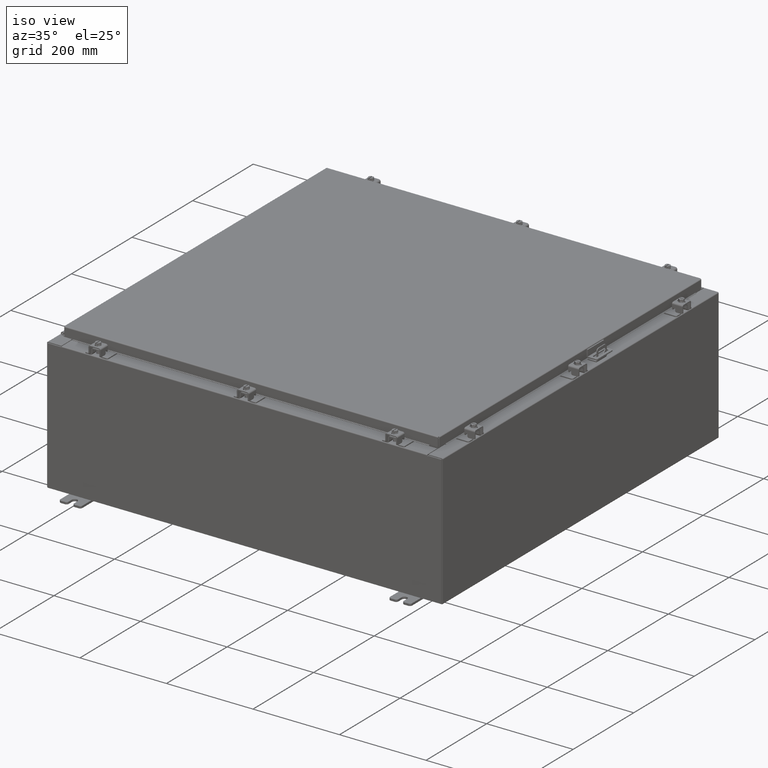
[diagram: clean part render]
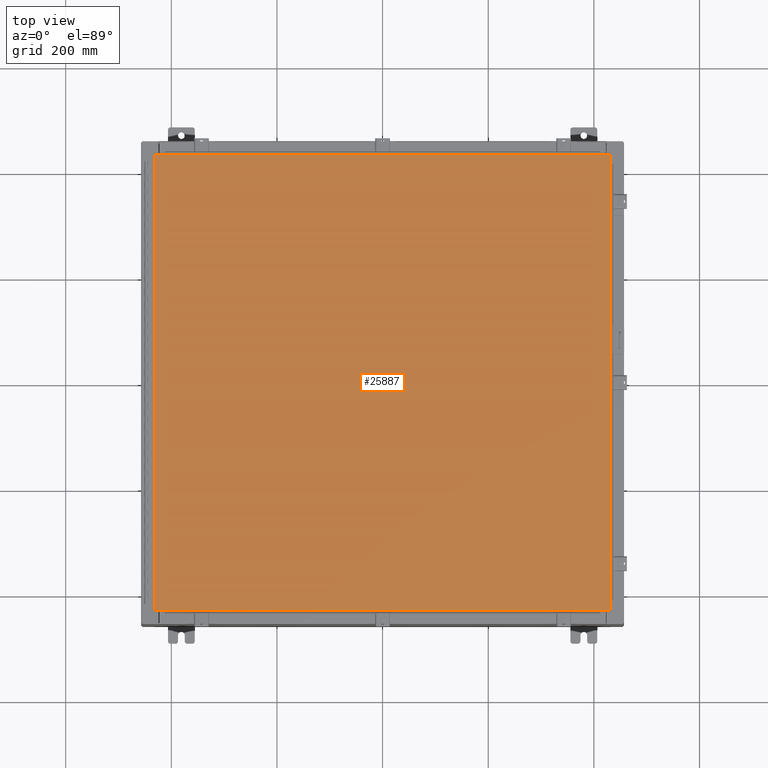
[diagram: tour spotlight — one face highlighted and labeled with its STEP entity id]
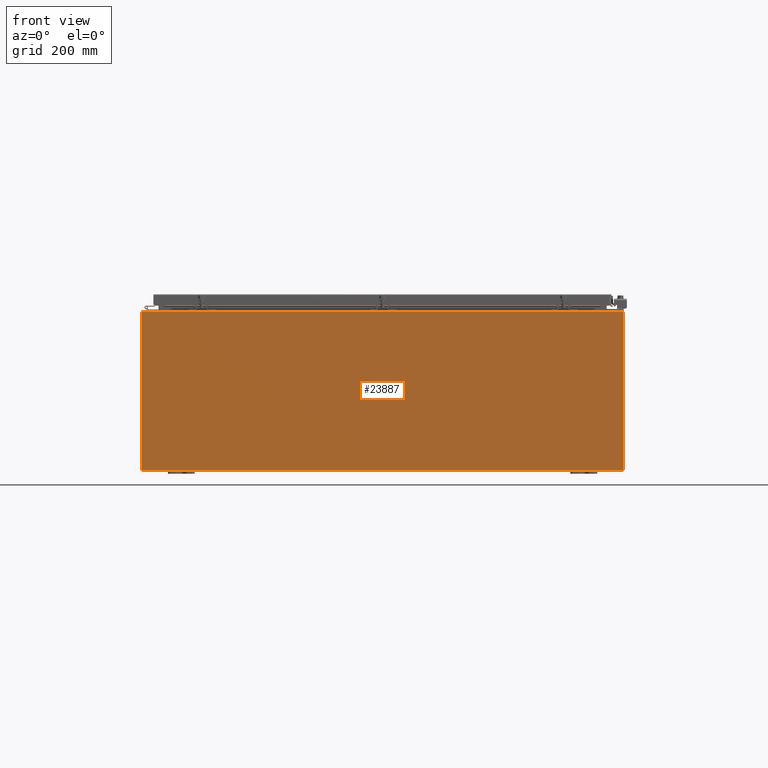
[diagram: tour spotlight — one face highlighted and labeled with its STEP entity id]
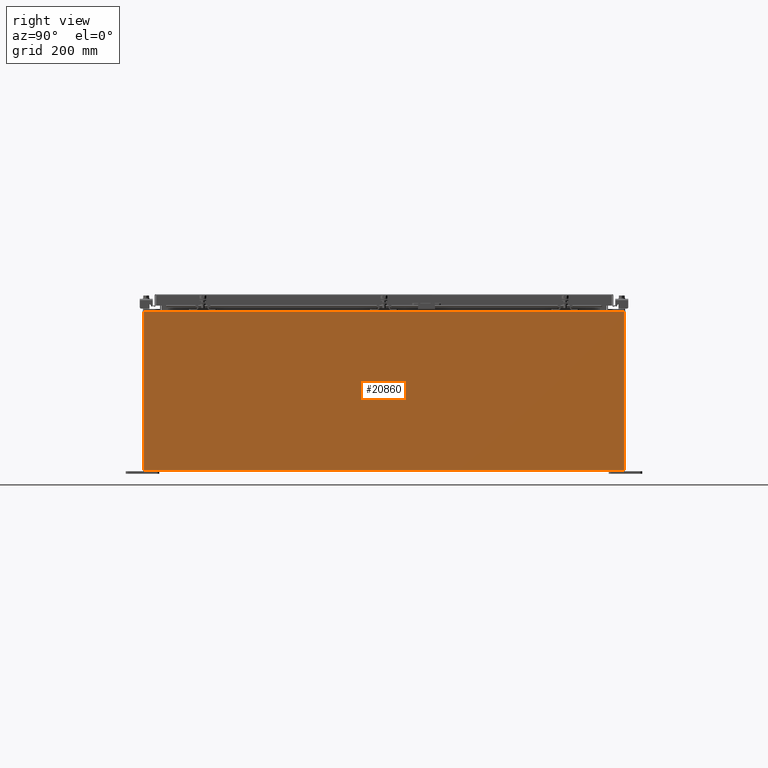
[diagram: tour spotlight — one face highlighted and labeled with its STEP entity id]
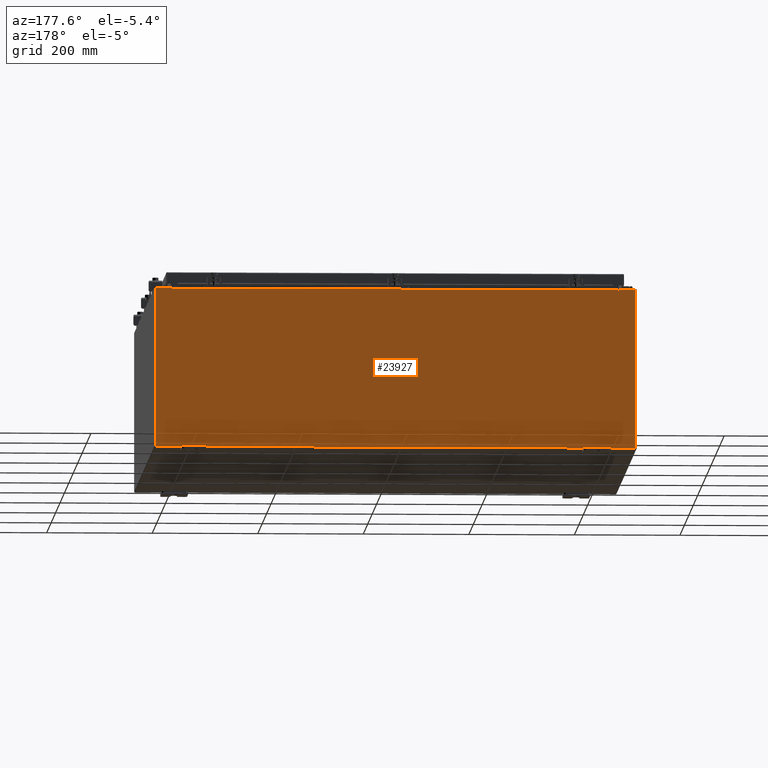
[diagram: tour spotlight — one face highlighted and labeled with its STEP entity id]
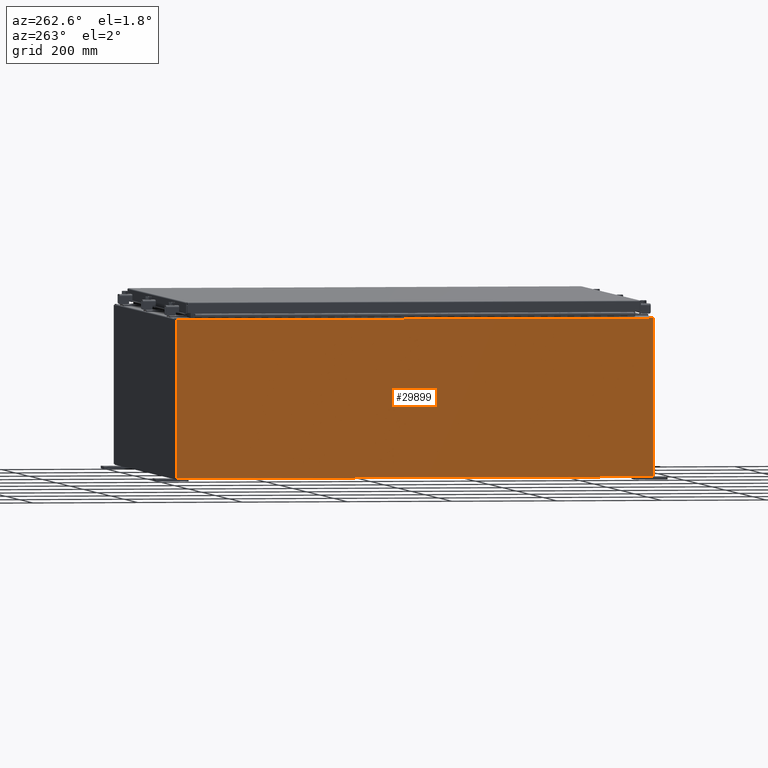
[diagram: tour spotlight — one face highlighted and labeled with its STEP entity id]
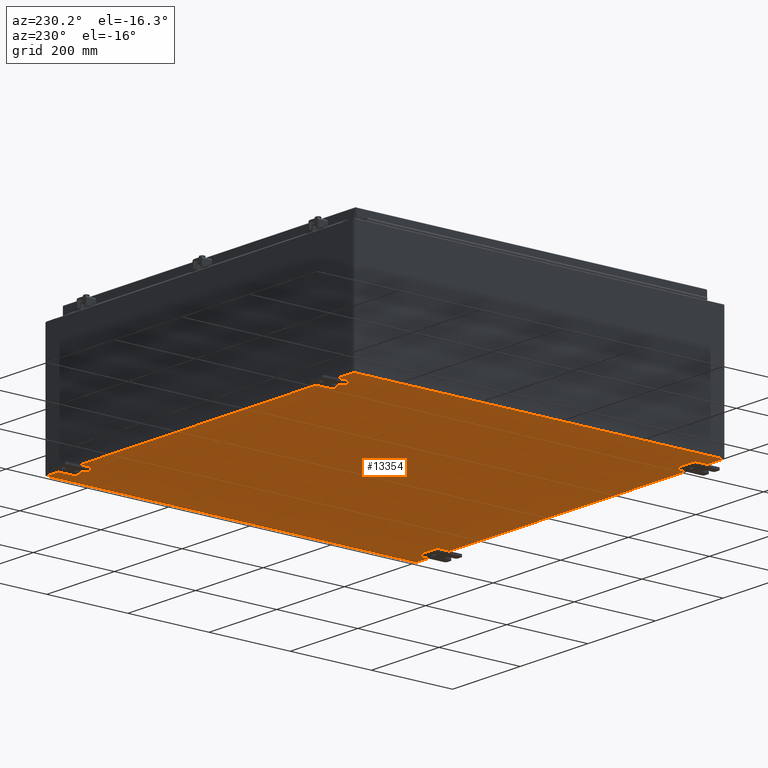
[diagram: tour spotlight — one face highlighted and labeled with its STEP entity id]
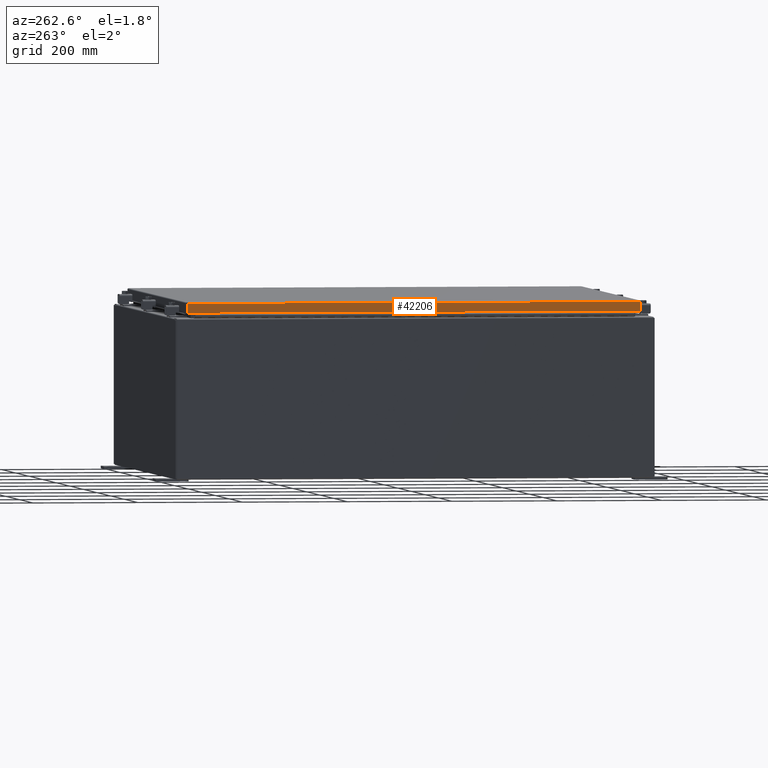
[diagram: tour spotlight — one face highlighted and labeled with its STEP entity id]
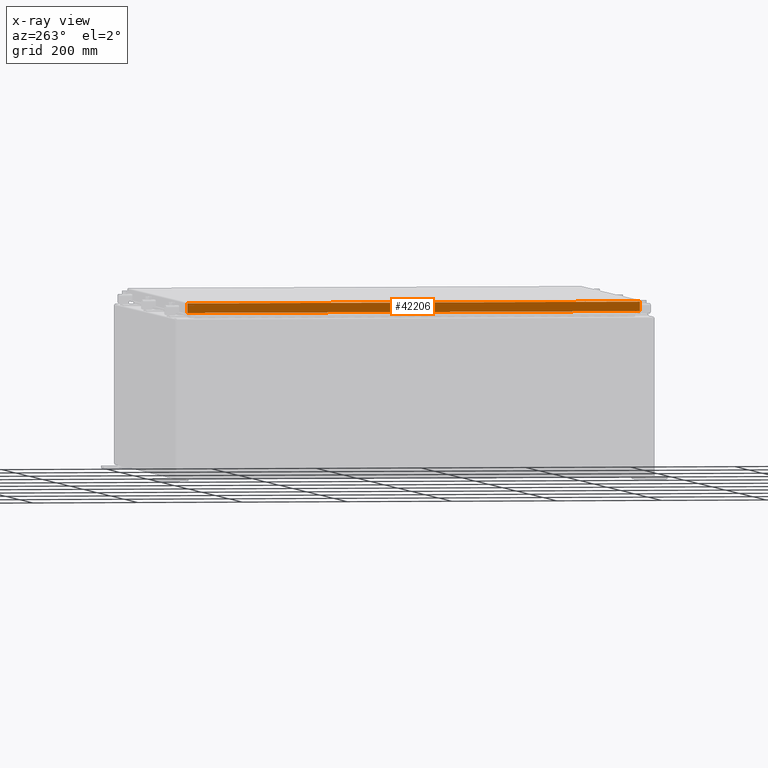
[diagram: x-ray of the same camera — body ghosted, this tour face saturated]
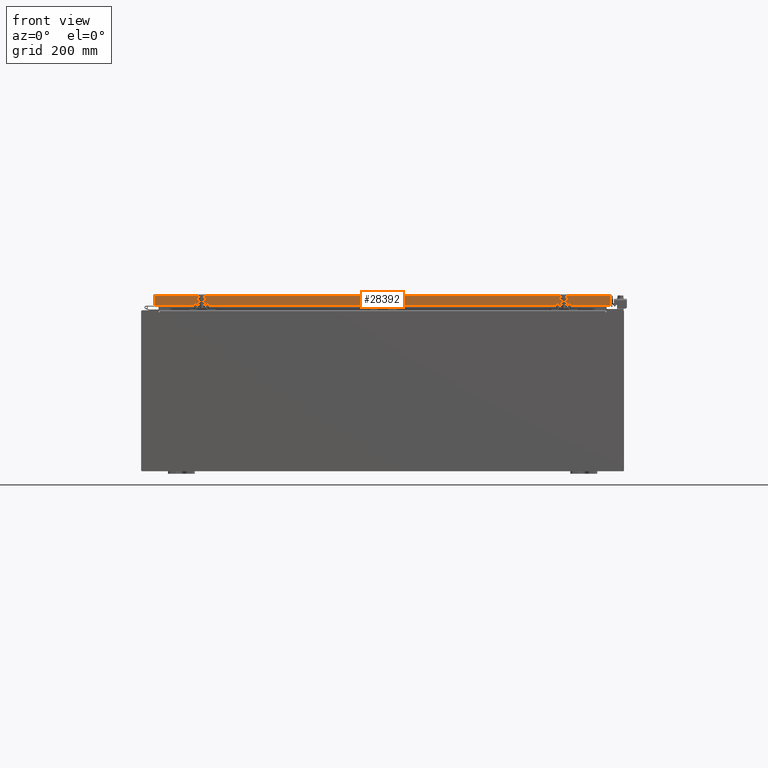
[diagram: tour spotlight — one face highlighted and labeled with its STEP entity id]
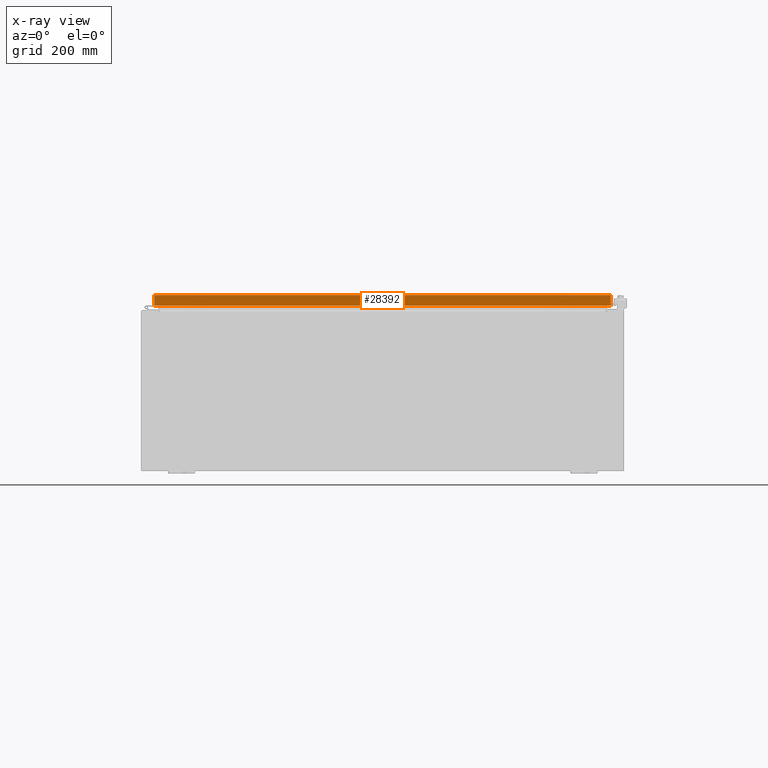
[diagram: x-ray of the same camera — body ghosted, this tour face saturated]
A machine part: a face-by-face anatomy tour. The part has 2594 B-rep faces; the first image is the clean iso view, then the 8 largest visible faces are spotlighted one at a time (largest first), each with its STEP entity span.

Face 1 — top view, entity #25887. In plain terms, the highlighted planar face has unit normal (0, 0, -1).
Definition (entity closure, byte-faithful):
#2145 = EDGE_CURVE ( 'NONE', #40204, #11570, #14631, .T. ) ;
#2444 = CARTESIAN_POINT ( 'NONE',  ( -16.99029999999999800, -17.00630000000000000, -2.048885995248197400E-016 ) ) ;
#3492 = VERTEX_POINT ( 'NONE', #18720 ) ;
#5374 = VECTOR ( 'NONE', #9893, 39.37007874015748100 ) ;
#6079 = PLANE ( 'NONE',  #12068 ) ;
#8097 = ORIENTED_EDGE ( 'NONE', *, *, #25274, .T. ) ;
#9584 = DIRECTION ( 'NONE',  ( 0.0000000000000000000, 0.0000000000000000000, -1.000000000000000000 ) ) ;
#9765 = FACE_OUTER_BOUND ( 'NONE', #30158, .T. ) ;
#9893 = DIRECTION ( 'NONE',  ( -1.000000000000000000, -0.0000000000000000000, -0.0000000000000000000 ) ) ;
#11570 = VERTEX_POINT ( 'NONE', #35130 ) ;
#12068 = AXIS2_PLACEMENT_3D ( 'NONE', #19921, #9584, #33869 ) ;
#14110 = LINE ( 'NONE', #33444, #16306 ) ;
#14631 = LINE ( 'NONE', #43346, #5374 ) ;
#15420 = LINE ( 'NONE', #26801, #32778 ) ;
#16306 = VECTOR ( 'NONE', #36635, 39.37007874015748100 ) ;
#18720 = CARTESIAN_POINT ( 'NONE',  ( 16.99029999999999800, -17.00629999999999600, -2.048885995248197400E-016 ) ) ;
#19921 = CARTESIAN_POINT ( 'NONE',  ( 0.0000000000000000000, 0.0000000000000000000, 0.0000000000000000000 ) ) ;
#24576 = VECTOR ( 'NONE', #30268, 39.37007874015748100 ) ;
#25274 = EDGE_CURVE ( 'NONE', #11570, #39502, #15420, .T. ) ;
#25887 = ADVANCED_FACE ( 'NONE', ( #9765 ), #6079, .F. ) ;
#26801 = CARTESIAN_POINT ( 'NONE',  ( -16.99029999999998400, 17.00630000000000300, -2.048885995248197400E-016 ) ) ;
#29606 = ORIENTED_EDGE ( 'NONE', *, *, #40821, .T. ) ;
#30158 = EDGE_LOOP ( 'NONE', ( #33754, #29606, #31762, #8097 ) ) ;
#30268 = DIRECTION ( 'NONE',  ( 1.000000000000000000, -0.0000000000000000000, -0.0000000000000000000 ) ) ;
#30290 = DIRECTION ( 'NONE',  ( 0.0000000000000000000, -1.000000000000000000, 0.0000000000000000000 ) ) ;
#31762 = ORIENTED_EDGE ( 'NONE', *, *, #2145, .T. ) ;
#32778 = VECTOR ( 'NONE', #30290, 39.37007874015748100 ) ;
#33444 = CARTESIAN_POINT ( 'NONE',  ( 16.99029999999999800, -17.00629999999999600, -2.048885995248197400E-016 ) ) ;
#33754 = ORIENTED_EDGE ( 'NONE', *, *, #38669, .T. ) ;
#33802 = LINE ( 'NONE', #2444, #24576 ) ;
#33869 = DIRECTION ( 'NONE',  ( -1.000000000000000000, 0.0000000000000000000, -0.0000000000000000000 ) ) ;
#35130 = CARTESIAN_POINT ( 'NONE',  ( -16.99029999999998400, 17.00630000000000300, -2.048885995248197400E-016 ) ) ;
#36635 = DIRECTION ( 'NONE',  ( 0.0000000000000000000, 1.000000000000000000, 0.0000000000000000000 ) ) ;
#36688 = CARTESIAN_POINT ( 'NONE',  ( 16.99029999999999800, 17.00630000000000700, 8.878505979408856000E-016 ) ) ;
#38669 = EDGE_CURVE ( 'NONE', #39502, #3492, #33802, .T. ) ;
#39452 = CARTESIAN_POINT ( 'NONE',  ( -16.99029999999999800, -17.00630000000000000, -2.048885995248197400E-016 ) ) ;
#39502 = VERTEX_POINT ( 'NONE', #39452 ) ;
#40204 = VERTEX_POINT ( 'NONE', #36688 ) ;
#40821 = EDGE_CURVE ( 'NONE', #3492, #40204, #14110, .T. ) ;
#43346 = CARTESIAN_POINT ( 'NONE',  ( 16.99029999999999800, 17.00630000000000700, 8.878505979408856000E-016 ) ) ;

Face 2 — front view, entity #23887. In plain terms, the highlighted planar face has unit normal (-0, 1, -0).
Definition (entity closure, byte-faithful):
#343 = CARTESIAN_POINT ( 'NONE',  ( -16.67455000000000000, 0.0000000000000000000, 5.874949999999999200 ) ) ;
#364 = CARTESIAN_POINT ( 'NONE',  ( 17.92530000000000400, 0.0000000000000000000, -5.925300000000000000 ) ) ;
#739 = VECTOR ( 'NONE', #25670, 39.37007874015748100 ) ;
#1367 = CARTESIAN_POINT ( 'NONE',  ( 16.63720000000000400, 0.0000000000000000000, 0.0000000000000000000 ) ) ;
#1870 = VECTOR ( 'NONE', #13172, 39.37007874015748100 ) ;
#1927 = DIRECTION ( 'NONE',  ( 0.0000000000000000000, 0.0000000000000000000, 1.000000000000000000 ) ) ;
#1938 = DIRECTION ( 'NONE',  ( 0.0000000000000000000, -1.000000000000000000, 0.0000000000000000000 ) ) ;
#2481 = EDGE_CURVE ( 'NONE', #32421, #31246, #2593, .T. ) ;
#2593 = CIRCLE ( 'NONE', #11392, 0.01867499999999949400 ) ;
#2633 = ORIENTED_EDGE ( 'NONE', *, *, #9192, .F. ) ;
#2711 = DIRECTION ( 'NONE',  ( -8.681145560799821800E-014, 0.0000000000000000000, -1.000000000000000000 ) ) ;
#2871 = ORIENTED_EDGE ( 'NONE', *, *, #44537, .T. ) ;
#2969 = EDGE_CURVE ( 'NONE', #16265, #6051, #12490, .T. ) ;
#3181 = VECTOR ( 'NONE', #30901, 39.37007874015748100 ) ;
#3423 = EDGE_CURVE ( 'NONE', #37133, #13342, #14596, .T. ) ;
#3449 = LINE ( 'NONE', #44922, #30102 ) ;
#4626 = CARTESIAN_POINT ( 'NONE',  ( -16.63720000000000000, -0.0000000000000000000, 5.874949999999999200 ) ) ;
#5611 = ORIENTED_EDGE ( 'NONE', *, *, #27764, .F. ) ;
#6046 = EDGE_CURVE ( 'NONE', #36629, #11258, #30375, .T. ) ;
#6051 = VERTEX_POINT ( 'NONE', #39910 ) ;
#7792 = LINE ( 'NONE', #40817, #37657 ) ;
#8103 = LINE ( 'NONE', #12049, #25488 ) ;
#8919 = LINE ( 'NONE', #1367, #739 ) ;
#9192 = EDGE_CURVE ( 'NONE', #11258, #6051, #8919, .T. ) ;
#9721 = CARTESIAN_POINT ( 'NONE',  ( 16.63720000000000400, 0.0000000000000000000, 5.874949999999999200 ) ) ;
#10042 = LINE ( 'NONE', #33954, #1870 ) ;
#10784 = VECTOR ( 'NONE', #1927, 39.37007874015748100 ) ;
#10829 = DIRECTION ( 'NONE',  ( -0.0000000000000000000, -0.0000000000000000000, 1.000000000000000000 ) ) ;
#11142 = CARTESIAN_POINT ( 'NONE',  ( 17.92530000000000400, 0.0000000000000000000, 5.925300000000000000 ) ) ;
#11258 = VERTEX_POINT ( 'NONE', #9721 ) ;
#11392 = AXIS2_PLACEMENT_3D ( 'NONE', #15023, #43979, #15177 ) ;
#12049 = CARTESIAN_POINT ( 'NONE',  ( -16.63720000000000000, -0.0000000000000000000, 0.0000000000000000000 ) ) ;
#12490 = LINE ( 'NONE', #27395, #3181 ) ;
#13172 = DIRECTION ( 'NONE',  ( 1.000000000000000000, 0.0000000000000000000, 3.048036009064577000E-017 ) ) ;
#13215 = DIRECTION ( 'NONE',  ( -1.000000000000000000, -0.0000000000000000000, -0.0000000000000000000 ) ) ;
#13342 = VERTEX_POINT ( 'NONE', #364 ) ;
#14596 = LINE ( 'NONE', #41644, #40110 ) ;
#14846 = VERTEX_POINT ( 'NONE', #26534 ) ;
#15023 = CARTESIAN_POINT ( 'NONE',  ( -16.65587499999999800, 0.0000000000000000000, 5.874949999999999200 ) ) ;
#15177 = DIRECTION ( 'NONE',  ( 0.0000000000000000000, 0.0000000000000000000, -1.000000000000000000 ) ) ;
#15279 = ORIENTED_EDGE ( 'NONE', *, *, #3423, .T. ) ;
#15440 = CARTESIAN_POINT ( 'NONE',  ( 16.67455000000000400, 0.0000000000000000000, 5.874949999999999200 ) ) ;
#15540 = EDGE_LOOP ( 'NONE', ( #30553, #19486, #44148, #37088, #2633, #39684, #5611, #26915, #15279, #2871, #28642, #27017 ) ) ;
#15645 = CARTESIAN_POINT ( 'NONE',  ( 16.65587500000000500, 0.0000000000000000000, 5.874949999999999200 ) ) ;
#16265 = VERTEX_POINT ( 'NONE', #20980 ) ;
#16707 = EDGE_CURVE ( 'NONE', #28982, #41709, #10042, .T. ) ;
#19151 = VERTEX_POINT ( 'NONE', #43335 ) ;
#19486 = ORIENTED_EDGE ( 'NONE', *, *, #2481, .F. ) ;
#20779 = CARTESIAN_POINT ( 'NONE',  ( -16.67455000000000000, 0.0000000000000000000, 5.925299999999999100 ) ) ;
#20980 = CARTESIAN_POINT ( 'NONE',  ( -16.63720000000000000, 3.756290991288361700E-016, 5.912299999999999200 ) ) ;
#20992 = EDGE_CURVE ( 'NONE', #16265, #32421, #8103, .T. ) ;
#21040 = VECTOR ( 'NONE', #2711, 39.37007874015748100 ) ;
#21147 = LINE ( 'NONE', #22784, #10784 ) ;
#21188 = CARTESIAN_POINT ( 'NONE',  ( -17.92529999999999600, 0.0000000000000000000, 5.925299999999999100 ) ) ;
#22633 = DIRECTION ( 'NONE',  ( -0.0000000000000000000, 1.000000000000000000, -0.0000000000000000000 ) ) ;
#22784 = CARTESIAN_POINT ( 'NONE',  ( -16.67455000000000000, -0.0000000000000000000, 0.0000000000000000000 ) ) ;
#22798 = PLANE ( 'NONE',  #23630 ) ;
#23630 = AXIS2_PLACEMENT_3D ( 'NONE', #29602, #1938, #26263 ) ;
#23732 = CARTESIAN_POINT ( 'NONE',  ( 16.67454999999949500, -0.0000000000000000000, -1.447541957108302900E-012 ) ) ;
#23887 = ADVANCED_FACE ( 'NONE', ( #25237 ), #22798, .F. ) ;
#25113 = VECTOR ( 'NONE', #10829, 39.37007874015748100 ) ;
#25237 = FACE_OUTER_BOUND ( 'NONE', #15540, .T. ) ;
#25488 = VECTOR ( 'NONE', #36321, 39.37007874015748100 ) ;
#25670 = DIRECTION ( 'NONE',  ( 0.0000000000000000000, 0.0000000000000000000, 1.000000000000000000 ) ) ;
#26263 = DIRECTION ( 'NONE',  ( 0.0000000000000000000, -0.0000000000000000000, -1.000000000000000000 ) ) ;
#26534 = CARTESIAN_POINT ( 'NONE',  ( -17.92529999999999600, 0.0000000000000000000, -5.925300000000000000 ) ) ;
#26915 = ORIENTED_EDGE ( 'NONE', *, *, #37610, .T. ) ;
#27017 = ORIENTED_EDGE ( 'NONE', *, *, #16707, .T. ) ;
#27395 = CARTESIAN_POINT ( 'NONE',  ( -16.63720000000000000, 3.756290991288361700E-016, 5.912299999999999200 ) ) ;
#27764 = EDGE_CURVE ( 'NONE', #19151, #36629, #40560, .T. ) ;
#28642 = ORIENTED_EDGE ( 'NONE', *, *, #31247, .T. ) ;
#28982 = VERTEX_POINT ( 'NONE', #31777 ) ;
#29602 = CARTESIAN_POINT ( 'NONE',  ( 0.0000000000000000000, 0.0000000000000000000, 0.0000000000000000000 ) ) ;
#30102 = VECTOR ( 'NONE', #41422, 39.37007874015748100 ) ;
#30375 = CIRCLE ( 'NONE', #44322, 0.01867499999999949400 ) ;
#30553 = ORIENTED_EDGE ( 'NONE', *, *, #41408, .F. ) ;
#30901 = DIRECTION ( 'NONE',  ( 1.000000000000000000, 0.0000000000000000000, 0.0000000000000000000 ) ) ;
#31246 = VERTEX_POINT ( 'NONE', #343 ) ;
#31247 = EDGE_CURVE ( 'NONE', #14846, #28982, #34356, .T. ) ;
#31346 = DIRECTION ( 'NONE',  ( 0.0000000000000000000, 0.0000000000000000000, -1.000000000000000000 ) ) ;
#31777 = CARTESIAN_POINT ( 'NONE',  ( -17.92529999999999600, 0.0000000000000000000, 5.925299999999999100 ) ) ;
#32421 = VERTEX_POINT ( 'NONE', #4626 ) ;
#33954 = CARTESIAN_POINT ( 'NONE',  ( -17.92529999999999600, 0.0000000000000000000, 5.925299999999999100 ) ) ;
#34356 = LINE ( 'NONE', #21188, #25113 ) ;
#36321 = DIRECTION ( 'NONE',  ( 0.0000000000000000000, 0.0000000000000000000, -1.000000000000000000 ) ) ;
#36629 = VERTEX_POINT ( 'NONE', #15440 ) ;
#37088 = ORIENTED_EDGE ( 'NONE', *, *, #2969, .T. ) ;
#37133 = VERTEX_POINT ( 'NONE', #11142 ) ;
#37610 = EDGE_CURVE ( 'NONE', #19151, #37133, #3449, .T. ) ;
#37657 = VECTOR ( 'NONE', #13215, 39.37007874015748100 ) ;
#39684 = ORIENTED_EDGE ( 'NONE', *, *, #6046, .F. ) ;
#39910 = CARTESIAN_POINT ( 'NONE',  ( 16.63720000000000400, 0.0000000000000000000, 5.912299999999999200 ) ) ;
#40110 = VECTOR ( 'NONE', #31346, 39.37007874015748100 ) ;
#40560 = LINE ( 'NONE', #23732, #21040 ) ;
#40817 = CARTESIAN_POINT ( 'NONE',  ( -17.92529999999999600, 0.0000000000000000000, -5.925300000000000000 ) ) ;
#41408 = EDGE_CURVE ( 'NONE', #31246, #41709, #21147, .T. ) ;
#41422 = DIRECTION ( 'NONE',  ( 1.000000000000000000, 0.0000000000000000000, 3.048036009064577000E-017 ) ) ;
#41644 = CARTESIAN_POINT ( 'NONE',  ( 17.92530000000000400, 0.0000000000000000000, 5.925300000000000000 ) ) ;
#41709 = VERTEX_POINT ( 'NONE', #20779 ) ;
#43335 = CARTESIAN_POINT ( 'NONE',  ( 16.67455000000000700, 0.0000000000000000000, 5.925300000000000000 ) ) ;
#43389 = DIRECTION ( 'NONE',  ( 0.0000000000000000000, 0.0000000000000000000, -1.000000000000000000 ) ) ;
#43979 = DIRECTION ( 'NONE',  ( -0.0000000000000000000, 1.000000000000000000, -0.0000000000000000000 ) ) ;
#44148 = ORIENTED_EDGE ( 'NONE', *, *, #20992, .F. ) ;
#44322 = AXIS2_PLACEMENT_3D ( 'NONE', #15645, #22633, #43389 ) ;
#44537 = EDGE_CURVE ( 'NONE', #13342, #14846, #7792, .T. ) ;
#44922 = CARTESIAN_POINT ( 'NONE',  ( -17.92529999999999600, 0.0000000000000000000, 5.925299999999999100 ) ) ;

Face 3 — right view, entity #20860. In plain terms, the highlighted planar face has unit normal (-1, 0, 0).
Definition (entity closure, byte-faithful):
#523 = AXIS2_PLACEMENT_3D ( 'NONE', #21476, #42375, #21613 ) ;
#1818 = VERTEX_POINT ( 'NONE', #15476 ) ;
#1942 = LINE ( 'NONE', #9066, #19365 ) ;
#2527 = VERTEX_POINT ( 'NONE', #5739 ) ;
#3316 = ORIENTED_EDGE ( 'NONE', *, *, #5950, .T. ) ;
#5739 = CARTESIAN_POINT ( 'NONE',  ( 18.00000000000000000, 17.92530000000000000, 0.01299999999999766100 ) ) ;
#5950 = EDGE_CURVE ( 'NONE', #1818, #20311, #26605, .T. ) ;
#8029 = DIRECTION ( 'NONE',  ( -3.482016343714355500E-015, 0.0000000000000000000, -1.000000000000000000 ) ) ;
#8490 = DIRECTION ( 'NONE',  ( -0.0000000000000000000, -1.000000000000000000, -0.0000000000000000000 ) ) ;
#8621 = ORIENTED_EDGE ( 'NONE', *, *, #19628, .T. ) ;
#9066 = CARTESIAN_POINT ( 'NONE',  ( 18.00000000000000000, -17.92530000000000000, 0.01299999999999984700 ) ) ;
#9215 = VECTOR ( 'NONE', #8029, 39.37007874015748100 ) ;
#13088 = CARTESIAN_POINT ( 'NONE',  ( 18.00000000000004300, 17.92530000000000000, 11.83760000000000200 ) ) ;
#15476 = CARTESIAN_POINT ( 'NONE',  ( 18.00000000000004300, -17.92530000000000000, 11.83760000000000200 ) ) ;
#19094 = VECTOR ( 'NONE', #39033, 39.37007874015748100 ) ;
#19365 = VECTOR ( 'NONE', #23201, 39.37007874015748100 ) ;
#19628 = EDGE_CURVE ( 'NONE', #2527, #29363, #28301, .T. ) ;
#20311 = VERTEX_POINT ( 'NONE', #36220 ) ;
#20581 = EDGE_LOOP ( 'NONE', ( #44773, #3316, #26024, #8621 ) ) ;
#20860 = ADVANCED_FACE ( 'NONE', ( #21722 ), #38880, .F. ) ;
#21476 = CARTESIAN_POINT ( 'NONE',  ( 18.00000000000000000, 0.0000000000000000000, -6.293710784286997500E-014 ) ) ;
#21613 = DIRECTION ( 'NONE',  ( 3.482016343714355100E-015, 0.0000000000000000000, 1.000000000000000000 ) ) ;
#21722 = FACE_OUTER_BOUND ( 'NONE', #20581, .T. ) ;
#22765 = EDGE_CURVE ( 'NONE', #2527, #20311, #1942, .T. ) ;
#23201 = DIRECTION ( 'NONE',  ( 2.122662239958547800E-031, -1.000000000000000000, 6.096072018129156600E-017 ) ) ;
#23404 = LINE ( 'NONE', #29288, #41839 ) ;
#26024 = ORIENTED_EDGE ( 'NONE', *, *, #22765, .F. ) ;
#26605 = LINE ( 'NONE', #28375, #9215 ) ;
#28301 = LINE ( 'NONE', #42525, #19094 ) ;
#28375 = CARTESIAN_POINT ( 'NONE',  ( 18.00000000000000000, -17.92530000000000000, -6.293710784286997500E-014 ) ) ;
#29288 = CARTESIAN_POINT ( 'NONE',  ( 18.00000000000004300, 17.92530000000000000, 11.83760000000000200 ) ) ;
#29363 = VERTEX_POINT ( 'NONE', #13088 ) ;
#33714 = EDGE_CURVE ( 'NONE', #29363, #1818, #23404, .T. ) ;
#36220 = CARTESIAN_POINT ( 'NONE',  ( 18.00000000000000000, -17.92530000000000000, 0.01300000000000022700 ) ) ;
#38880 = PLANE ( 'NONE',  #523 ) ;
#39033 = DIRECTION ( 'NONE',  ( 3.482016343714355500E-015, -1.832640180902292400E-016, 1.000000000000000000 ) ) ;
#41839 = VECTOR ( 'NONE', #8490, 39.37007874015748100 ) ;
#42375 = DIRECTION ( 'NONE',  ( -1.000000000000000000, 0.0000000000000000000, 3.482016343714355100E-015 ) ) ;
#42525 = CARTESIAN_POINT ( 'NONE',  ( 18.00000000000000000, 17.92530000000000000, -5.965204533939718800E-014 ) ) ;
#44773 = ORIENTED_EDGE ( 'NONE', *, *, #33714, .T. ) ;

Face 4 — auxiliary view, entity #23927. In plain terms, the highlighted planar face has unit normal (0, -1, 0).
Definition (entity closure, byte-faithful):
#124 = DIRECTION ( 'NONE',  ( 0.0000000000000000000, 0.0000000000000000000, -1.000000000000000000 ) ) ;
#913 = VERTEX_POINT ( 'NONE', #3084 ) ;
#1004 = VECTOR ( 'NONE', #9151, 39.37007874015748100 ) ;
#2299 = ORIENTED_EDGE ( 'NONE', *, *, #42397, .T. ) ;
#2516 = LINE ( 'NONE', #32198, #10700 ) ;
#2868 = CARTESIAN_POINT ( 'NONE',  ( 16.63720000000000400, 0.0000000000000000000, 5.912299999999999200 ) ) ;
#3084 = CARTESIAN_POINT ( 'NONE',  ( 16.67455000000000700, 0.0000000000000000000, 5.925300000000000000 ) ) ;
#3247 = CARTESIAN_POINT ( 'NONE',  ( -16.67455000000000000, 0.0000000000000000000, 5.874949999999999200 ) ) ;
#3615 = EDGE_CURVE ( 'NONE', #14222, #35453, #33580, .T. ) ;
#3704 = CARTESIAN_POINT ( 'NONE',  ( -16.67455000000000000, 0.0000000000000000000, 5.925299999999999100 ) ) ;
#4187 = LINE ( 'NONE', #29151, #29753 ) ;
#4383 = DIRECTION ( 'NONE',  ( -0.0000000000000000000, 1.000000000000000000, -0.0000000000000000000 ) ) ;
#4809 = ORIENTED_EDGE ( 'NONE', *, *, #6371, .T. ) ;
#5606 = CARTESIAN_POINT ( 'NONE',  ( 0.0000000000000000000, 0.0000000000000000000, 0.0000000000000000000 ) ) ;
#6163 = EDGE_CURVE ( 'NONE', #13779, #44599, #36361, .T. ) ;
#6371 = EDGE_CURVE ( 'NONE', #913, #13779, #27628, .T. ) ;
#6443 = DIRECTION ( 'NONE',  ( -8.681145560799821800E-014, 0.0000000000000000000, -1.000000000000000000 ) ) ;
#6729 = CARTESIAN_POINT ( 'NONE',  ( -16.63720000000000000, 3.756290991288361700E-016, 5.912299999999999200 ) ) ;
#7494 = DIRECTION ( 'NONE',  ( 0.0000000000000000000, 0.0000000000000000000, -1.000000000000000000 ) ) ;
#7683 = LINE ( 'NONE', #6729, #25067 ) ;
#7747 = CARTESIAN_POINT ( 'NONE',  ( -16.63720000000000000, 3.756290991288361700E-016, 5.912299999999999200 ) ) ;
#8275 = CARTESIAN_POINT ( 'NONE',  ( -16.63720000000000000, -0.0000000000000000000, 5.874949999999999200 ) ) ;
#8372 = ORIENTED_EDGE ( 'NONE', *, *, #10900, .F. ) ;
#8397 = CARTESIAN_POINT ( 'NONE',  ( -16.63720000000000000, -0.0000000000000000000, 0.0000000000000000000 ) ) ;
#9102 = DIRECTION ( 'NONE',  ( 0.0000000000000000000, -1.000000000000000000, 0.0000000000000000000 ) ) ;
#9151 = DIRECTION ( 'NONE',  ( 1.000000000000000000, 0.0000000000000000000, 3.048036009064577000E-017 ) ) ;
#10221 = EDGE_LOOP ( 'NONE', ( #12197, #21378, #35040, #37150, #21275, #8372, #27963, #4809, #43421, #37060, #2299, #27780 ) ) ;
#10322 = VERTEX_POINT ( 'NONE', #8275 ) ;
#10700 = VECTOR ( 'NONE', #14901, 39.37007874015748100 ) ;
#10728 = EDGE_CURVE ( 'NONE', #12306, #27768, #7683, .T. ) ;
#10758 = VECTOR ( 'NONE', #35460, 39.37007874015748100 ) ;
#10900 = EDGE_CURVE ( 'NONE', #27200, #13194, #28832, .T. ) ;
#11611 = CIRCLE ( 'NONE', #22570, 0.01867499999999949400 ) ;
#12174 = VECTOR ( 'NONE', #6443, 39.37007874015748100 ) ;
#12197 = ORIENTED_EDGE ( 'NONE', *, *, #14154, .F. ) ;
#12306 = VERTEX_POINT ( 'NONE', #7747 ) ;
#13023 = VERTEX_POINT ( 'NONE', #29704 ) ;
#13194 = VERTEX_POINT ( 'NONE', #37576 ) ;
#13779 = VERTEX_POINT ( 'NONE', #30404 ) ;
#14154 = EDGE_CURVE ( 'NONE', #43298, #35453, #4187, .T. ) ;
#14222 = VERTEX_POINT ( 'NONE', #26121 ) ;
#14901 = DIRECTION ( 'NONE',  ( -0.0000000000000000000, -0.0000000000000000000, 1.000000000000000000 ) ) ;
#14913 = FACE_OUTER_BOUND ( 'NONE', #10221, .T. ) ;
#16722 = CARTESIAN_POINT ( 'NONE',  ( -17.92529999999999600, 0.0000000000000000000, -5.925300000000000000 ) ) ;
#17327 = AXIS2_PLACEMENT_3D ( 'NONE', #25234, #4383, #28696 ) ;
#18430 = CARTESIAN_POINT ( 'NONE',  ( 17.92530000000000400, 0.0000000000000000000, 5.925300000000000000 ) ) ;
#20223 = DIRECTION ( 'NONE',  ( -1.000000000000000000, -0.0000000000000000000, -0.0000000000000000000 ) ) ;
#20968 = DIRECTION ( 'NONE',  ( -0.0000000000000000000, 1.000000000000000000, -0.0000000000000000000 ) ) ;
#21275 = ORIENTED_EDGE ( 'NONE', *, *, #26863, .F. ) ;
#21378 = ORIENTED_EDGE ( 'NONE', *, *, #44675, .F. ) ;
#21422 = VECTOR ( 'NONE', #20223, 39.37007874015748100 ) ;
#22570 = AXIS2_PLACEMENT_3D ( 'NONE', #41708, #20968, #124 ) ;
#23567 = LINE ( 'NONE', #44545, #12174 ) ;
#23927 = ADVANCED_FACE ( 'NONE', ( #14913 ), #26420, .F. ) ;
#25067 = VECTOR ( 'NONE', #38133, 39.37007874015748100 ) ;
#25145 = CARTESIAN_POINT ( 'NONE',  ( 16.63720000000000400, 0.0000000000000000000, 0.0000000000000000000 ) ) ;
#25234 = CARTESIAN_POINT ( 'NONE',  ( 16.65587500000000500, 0.0000000000000000000, 5.874949999999999200 ) ) ;
#25699 = EDGE_CURVE ( 'NONE', #12306, #10322, #35848, .T. ) ;
#26121 = CARTESIAN_POINT ( 'NONE',  ( -17.92529999999999600, 0.0000000000000000000, 5.925299999999999100 ) ) ;
#26420 = PLANE ( 'NONE',  #30598 ) ;
#26638 = VECTOR ( 'NONE', #43137, 39.37007874015748100 ) ;
#26863 = EDGE_CURVE ( 'NONE', #13194, #27768, #38447, .T. ) ;
#27200 = VERTEX_POINT ( 'NONE', #40886 ) ;
#27314 = CARTESIAN_POINT ( 'NONE',  ( 17.92530000000000400, 0.0000000000000000000, -5.925300000000000000 ) ) ;
#27628 = LINE ( 'NONE', #40418, #1004 ) ;
#27768 = VERTEX_POINT ( 'NONE', #2868 ) ;
#27780 = ORIENTED_EDGE ( 'NONE', *, *, #3615, .T. ) ;
#27963 = ORIENTED_EDGE ( 'NONE', *, *, #30605, .F. ) ;
#28191 = VECTOR ( 'NONE', #7494, 39.37007874015748100 ) ;
#28696 = DIRECTION ( 'NONE',  ( 0.0000000000000000000, 0.0000000000000000000, -1.000000000000000000 ) ) ;
#28832 = CIRCLE ( 'NONE', #17327, 0.01867499999999949400 ) ;
#29151 = CARTESIAN_POINT ( 'NONE',  ( -16.67455000000000000, -0.0000000000000000000, 0.0000000000000000000 ) ) ;
#29387 = EDGE_CURVE ( 'NONE', #44599, #13023, #31719, .T. ) ;
#29704 = CARTESIAN_POINT ( 'NONE',  ( -17.92529999999999600, 0.0000000000000000000, -5.925300000000000000 ) ) ;
#29753 = VECTOR ( 'NONE', #32635, 39.37007874015748100 ) ;
#30404 = CARTESIAN_POINT ( 'NONE',  ( 17.92530000000000400, 0.0000000000000000000, 5.925300000000000000 ) ) ;
#30598 = AXIS2_PLACEMENT_3D ( 'NONE', #5606, #9102, #33403 ) ;
#30605 = EDGE_CURVE ( 'NONE', #913, #27200, #23567, .T. ) ;
#31719 = LINE ( 'NONE', #16722, #21422 ) ;
#32198 = CARTESIAN_POINT ( 'NONE',  ( -17.92529999999999600, 0.0000000000000000000, 5.925299999999999100 ) ) ;
#32487 = VECTOR ( 'NONE', #41351, 39.37007874015748100 ) ;
#32635 = DIRECTION ( 'NONE',  ( 0.0000000000000000000, 0.0000000000000000000, 1.000000000000000000 ) ) ;
#33403 = DIRECTION ( 'NONE',  ( 0.0000000000000000000, -0.0000000000000000000, -1.000000000000000000 ) ) ;
#33580 = LINE ( 'NONE', #37707, #32487 ) ;
#35040 = ORIENTED_EDGE ( 'NONE', *, *, #25699, .F. ) ;
#35453 = VERTEX_POINT ( 'NONE', #3704 ) ;
#35460 = DIRECTION ( 'NONE',  ( 0.0000000000000000000, 0.0000000000000000000, 1.000000000000000000 ) ) ;
#35848 = LINE ( 'NONE', #8397, #26638 ) ;
#36361 = LINE ( 'NONE', #18430, #28191 ) ;
#37060 = ORIENTED_EDGE ( 'NONE', *, *, #29387, .T. ) ;
#37150 = ORIENTED_EDGE ( 'NONE', *, *, #10728, .T. ) ;
#37576 = CARTESIAN_POINT ( 'NONE',  ( 16.63720000000000400, 0.0000000000000000000, 5.874949999999999200 ) ) ;
#37707 = CARTESIAN_POINT ( 'NONE',  ( -17.92529999999999600, 0.0000000000000000000, 5.925299999999999100 ) ) ;
#38133 = DIRECTION ( 'NONE',  ( 1.000000000000000000, 0.0000000000000000000, 0.0000000000000000000 ) ) ;
#38447 = LINE ( 'NONE', #25145, #10758 ) ;
#40418 = CARTESIAN_POINT ( 'NONE',  ( -17.92529999999999600, 0.0000000000000000000, 5.925299999999999100 ) ) ;
#40886 = CARTESIAN_POINT ( 'NONE',  ( 16.67455000000000400, 0.0000000000000000000, 5.874949999999999200 ) ) ;
#41351 = DIRECTION ( 'NONE',  ( 1.000000000000000000, 0.0000000000000000000, 3.048036009064577000E-017 ) ) ;
#41708 = CARTESIAN_POINT ( 'NONE',  ( -16.65587499999999800, 0.0000000000000000000, 5.874949999999999200 ) ) ;
#42397 = EDGE_CURVE ( 'NONE', #13023, #14222, #2516, .T. ) ;
#43137 = DIRECTION ( 'NONE',  ( 0.0000000000000000000, 0.0000000000000000000, -1.000000000000000000 ) ) ;
#43298 = VERTEX_POINT ( 'NONE', #3247 ) ;
#43421 = ORIENTED_EDGE ( 'NONE', *, *, #6163, .T. ) ;
#44545 = CARTESIAN_POINT ( 'NONE',  ( 16.67454999999949500, -0.0000000000000000000, -1.447541957108302900E-012 ) ) ;
#44599 = VERTEX_POINT ( 'NONE', #27314 ) ;
#44675 = EDGE_CURVE ( 'NONE', #10322, #43298, #11611, .T. ) ;

Face 5 — auxiliary view, entity #29899. In plain terms, the highlighted planar face has unit normal (1, 0, 0).
Definition (entity closure, byte-faithful):
#225 = VECTOR ( 'NONE', #3484, 39.37007874015748100 ) ;
#403 = EDGE_LOOP ( 'NONE', ( #2942, #31408, #17466, #18708 ) ) ;
#823 = VERTEX_POINT ( 'NONE', #5029 ) ;
#1315 = LINE ( 'NONE', #13869, #225 ) ;
#1776 = FACE_OUTER_BOUND ( 'NONE', #403, .T. ) ;
#2929 = CARTESIAN_POINT ( 'NONE',  ( -18.00000000000004300, -17.92530000000000000, 11.83760000000000200 ) ) ;
#2942 = ORIENTED_EDGE ( 'NONE', *, *, #3555, .T. ) ;
#3324 = CARTESIAN_POINT ( 'NONE',  ( -18.00000000000000000, 17.92530000000000000, 0.01299999999999984700 ) ) ;
#3484 = DIRECTION ( 'NONE',  ( 3.482016343714355500E-015, 0.0000000000000000000, -1.000000000000000000 ) ) ;
#3555 = EDGE_CURVE ( 'NONE', #34255, #14474, #19475, .T. ) ;
#4256 = CARTESIAN_POINT ( 'NONE',  ( -18.00000000000004300, -17.92530000000000000, 11.83760000000000200 ) ) ;
#5029 = CARTESIAN_POINT ( 'NONE',  ( -18.00000000000000000, 17.92530000000000000, 0.01299999999999984700 ) ) ;
#5315 = VERTEX_POINT ( 'NONE', #5387 ) ;
#5387 = CARTESIAN_POINT ( 'NONE',  ( -18.00000000000000000, -17.92530000000000000, 0.01299999999999984700 ) ) ;
#5582 = DIRECTION ( 'NONE',  ( 3.482016343714355100E-015, 0.0000000000000000000, -1.000000000000000000 ) ) ;
#8947 = EDGE_CURVE ( 'NONE', #14474, #823, #1315, .T. ) ;
#10098 = CARTESIAN_POINT ( 'NONE',  ( -18.00000000000000000, -17.92530000000000000, -6.293710784286997500E-014 ) ) ;
#10323 = CARTESIAN_POINT ( 'NONE',  ( -18.00000000000004300, 17.92530000000000000, 11.83760000000000200 ) ) ;
#12137 = EDGE_CURVE ( 'NONE', #5315, #823, #15843, .T. ) ;
#13601 = DIRECTION ( 'NONE',  ( -3.482016343714355500E-015, 0.0000000000000000000, 1.000000000000000000 ) ) ;
#13869 = CARTESIAN_POINT ( 'NONE',  ( -18.00000000000000000, 17.92530000000000000, -6.293710784286997500E-014 ) ) ;
#14474 = VERTEX_POINT ( 'NONE', #10323 ) ;
#15371 = AXIS2_PLACEMENT_3D ( 'NONE', #43691, #26399, #5582 ) ;
#15843 = LINE ( 'NONE', #3324, #23972 ) ;
#17341 = DIRECTION ( 'NONE',  ( -0.0000000000000000000, 1.000000000000000000, -0.0000000000000000000 ) ) ;
#17466 = ORIENTED_EDGE ( 'NONE', *, *, #12137, .F. ) ;
#18708 = ORIENTED_EDGE ( 'NONE', *, *, #25400, .T. ) ;
#19475 = LINE ( 'NONE', #2929, #43889 ) ;
#20147 = VECTOR ( 'NONE', #13601, 39.37007874015748100 ) ;
#23972 = VECTOR ( 'NONE', #17341, 39.37007874015748100 ) ;
#25400 = EDGE_CURVE ( 'NONE', #5315, #34255, #29362, .T. ) ;
#26399 = DIRECTION ( 'NONE',  ( 1.000000000000000000, 0.0000000000000000000, 3.482016343714355100E-015 ) ) ;
#29362 = LINE ( 'NONE', #10098, #20147 ) ;
#29899 = ADVANCED_FACE ( 'NONE', ( #1776 ), #33231, .F. ) ;
#31408 = ORIENTED_EDGE ( 'NONE', *, *, #8947, .T. ) ;
#33231 = PLANE ( 'NONE',  #15371 ) ;
#33728 = DIRECTION ( 'NONE',  ( 0.0000000000000000000, 1.000000000000000000, 0.0000000000000000000 ) ) ;
#34255 = VERTEX_POINT ( 'NONE', #4256 ) ;
#43691 = CARTESIAN_POINT ( 'NONE',  ( -18.00000000000000000, 0.0000000000000000000, -6.293710784286997500E-014 ) ) ;
#43889 = VECTOR ( 'NONE', #33728, 39.37007874015748100 ) ;

Face 6 — auxiliary view, entity #13354. In plain terms, the highlighted planar face has unit normal (0, 0, -1).
Definition (entity closure, byte-faithful):
#516 = DIRECTION ( 'NONE',  ( 0.0000000000000000000, 0.0000000000000000000, -1.000000000000000000 ) ) ;
#1216 = LINE ( 'NONE', #36025, #18635 ) ;
#2757 = DIRECTION ( 'NONE',  ( -1.000000000000000000, -0.0000000000000000000, -0.0000000000000000000 ) ) ;
#3719 = FACE_OUTER_BOUND ( 'NONE', #15935, .T. ) ;
#3725 = VECTOR ( 'NONE', #8493, 39.37007874015748100 ) ;
#6040 = EDGE_CURVE ( 'NONE', #19971, #21568, #40697, .T. ) ;
#6290 = CARTESIAN_POINT ( 'NONE',  ( -18.00000000000000000, 17.92530000000000000, -0.07470000000000000300 ) ) ;
#8174 = CARTESIAN_POINT ( 'NONE',  ( 17.91229999999999800, -17.92530000000000000, -0.07470000000000000300 ) ) ;
#8493 = DIRECTION ( 'NONE',  ( -0.0000000000000000000, -1.000000000000000000, 8.208677865577646300E-017 ) ) ;
#9450 = EDGE_CURVE ( 'NONE', #23803, #21568, #18665, .T. ) ;
#9564 = DIRECTION ( 'NONE',  ( 1.000000000000000000, 0.0000000000000000000, 0.0000000000000000000 ) ) ;
#9873 = CARTESIAN_POINT ( 'NONE',  ( -17.91229999999999800, 17.92530000000000000, -0.07470000000000000300 ) ) ;
#10857 = PLANE ( 'NONE',  #25832 ) ;
#11279 = VERTEX_POINT ( 'NONE', #9873 ) ;
#11862 = CARTESIAN_POINT ( 'NONE',  ( 17.91229999999999800, 17.92530000000000000, -0.07470000000000251400 ) ) ;
#13354 = ADVANCED_FACE ( 'NONE', ( #3719 ), #10857, .T. ) ;
#15935 = EDGE_LOOP ( 'NONE', ( #24132, #16828, #32553, #20830 ) ) ;
#16828 = ORIENTED_EDGE ( 'NONE', *, *, #17985, .T. ) ;
#17985 = EDGE_CURVE ( 'NONE', #23803, #11279, #1216, .T. ) ;
#18635 = VECTOR ( 'NONE', #39507, 39.37007874015748100 ) ;
#18665 = LINE ( 'NONE', #40813, #26817 ) ;
#19971 = VERTEX_POINT ( 'NONE', #40789 ) ;
#20830 = ORIENTED_EDGE ( 'NONE', *, *, #6040, .T. ) ;
#21568 = VERTEX_POINT ( 'NONE', #8174 ) ;
#23803 = VERTEX_POINT ( 'NONE', #39003 ) ;
#24132 = ORIENTED_EDGE ( 'NONE', *, *, #9450, .F. ) ;
#24826 = DIRECTION ( 'NONE',  ( -1.000000000000000000, 0.0000000000000000000, -0.0000000000000000000 ) ) ;
#25832 = AXIS2_PLACEMENT_3D ( 'NONE', #35134, #516, #24826 ) ;
#26817 = VECTOR ( 'NONE', #9564, 39.37007874015748100 ) ;
#32090 = VECTOR ( 'NONE', #2757, 39.37007874015748100 ) ;
#32553 = ORIENTED_EDGE ( 'NONE', *, *, #32699, .F. ) ;
#32699 = EDGE_CURVE ( 'NONE', #19971, #11279, #41309, .T. ) ;
#35134 = CARTESIAN_POINT ( 'NONE',  ( 0.0000000000000000000, 0.0000000000000000000, -0.07470000000000000300 ) ) ;
#36025 = CARTESIAN_POINT ( 'NONE',  ( -17.91229999999999800, -17.92530000000000000, -0.07469999999999994700 ) ) ;
#39003 = CARTESIAN_POINT ( 'NONE',  ( -17.91229999999999800, -17.92530000000000000, -0.07469999999999994700 ) ) ;
#39507 = DIRECTION ( 'NONE',  ( -0.0000000000000000000, 1.000000000000000000, -0.0000000000000000000 ) ) ;
#40697 = LINE ( 'NONE', #11862, #3725 ) ;
#40789 = CARTESIAN_POINT ( 'NONE',  ( 17.91229999999999800, 17.92530000000000000, -0.07470000000000251400 ) ) ;
#40813 = CARTESIAN_POINT ( 'NONE',  ( -18.00000000000000000, -17.92530000000000000, -0.07470000000000000300 ) ) ;
#41309 = LINE ( 'NONE', #6290, #32090 ) ;

Face 7 — auxiliary view, entity #42206. An x-ray twin of the same camera follows (body ghosted, this face saturated) — the face is partly hidden behind the body. In plain terms, the highlighted planar face has unit normal (1, -0, -0).
Definition (entity closure, byte-faithful):
#13 = DIRECTION ( 'NONE',  ( -3.034122441942816500E-015, 0.0000000000000000000, -1.000000000000000000 ) ) ;
#177 = CARTESIAN_POINT ( 'NONE',  ( -17.07799999999999600, 17.00515786437627600, 1.708239394146136100E-013 ) ) ;
#751 = LINE ( 'NONE', #177, #8932 ) ;
#2246 = VERTEX_POINT ( 'NONE', #23624 ) ;
#3238 = VERTEX_POINT ( 'NONE', #5240 ) ;
#4387 = ORIENTED_EDGE ( 'NONE', *, *, #38422, .F. ) ;
#4543 = VECTOR ( 'NONE', #19585, 39.37007874015748100 ) ;
#5149 = EDGE_CURVE ( 'NONE', #30460, #2246, #29370, .T. ) ;
#5240 = CARTESIAN_POINT ( 'NONE',  ( -17.07799999999999600, 17.00515786437628000, -0.7949999999999954900 ) ) ;
#6570 = VERTEX_POINT ( 'NONE', #17193 ) ;
#8932 = VECTOR ( 'NONE', #24479, 39.37007874015748100 ) ;
#10357 = PLANE ( 'NONE',  #23361 ) ;
#14683 = CARTESIAN_POINT ( 'NONE',  ( -17.07799999999999900, -17.00515786437626900, -0.07469999999999976700 ) ) ;
#14925 = DIRECTION ( 'NONE',  ( -3.034122441942816100E-015, 6.982962677686265900E-015, -1.000000000000000000 ) ) ;
#16106 = CARTESIAN_POINT ( 'NONE',  ( -17.07800000000000300, -17.09399999999999800, -0.7949999999999997100 ) ) ;
#16168 = FACE_OUTER_BOUND ( 'NONE', #39282, .T. ) ;
#17193 = CARTESIAN_POINT ( 'NONE',  ( -17.07799999999999600, 17.00515786437627600, -0.08770000000000439900 ) ) ;
#17502 = ORIENTED_EDGE ( 'NONE', *, *, #44052, .T. ) ;
#19585 = DIRECTION ( 'NONE',  ( 1.278506139541014700E-016, 1.000000000000000000, 1.238552822680358400E-016 ) ) ;
#20859 = DIRECTION ( 'NONE',  ( 1.000000000000000000, -1.278506139541011000E-016, -3.034122441942816500E-015 ) ) ;
#21994 = LINE ( 'NONE', #16106, #4543 ) ;
#23361 = AXIS2_PLACEMENT_3D ( 'NONE', #41608, #20859, #13 ) ;
#23624 = CARTESIAN_POINT ( 'NONE',  ( -17.07800000000000300, -17.00515786437626200, -0.7949999999999996000 ) ) ;
#23943 = EDGE_CURVE ( 'NONE', #2246, #3238, #21994, .T. ) ;
#24479 = DIRECTION ( 'NONE',  ( -3.034122441942816100E-015, 6.982962677686265900E-015, -1.000000000000000000 ) ) ;
#26232 = LINE ( 'NONE', #35747, #43607 ) ;
#28843 = ORIENTED_EDGE ( 'NONE', *, *, #23943, .F. ) ;
#29370 = LINE ( 'NONE', #14683, #36437 ) ;
#30460 = VERTEX_POINT ( 'NONE', #36975 ) ;
#30499 = ORIENTED_EDGE ( 'NONE', *, *, #5149, .F. ) ;
#35747 = CARTESIAN_POINT ( 'NONE',  ( -17.07799999999999900, -17.09399999999999800, -0.08770000000000004200 ) ) ;
#36437 = VECTOR ( 'NONE', #14925, 39.37007874015748100 ) ;
#36975 = CARTESIAN_POINT ( 'NONE',  ( -17.07799999999999900, -17.00515786437626500, -0.08770000000000224800 ) ) ;
#38422 = EDGE_CURVE ( 'NONE', #6570, #30460, #26232, .T. ) ;
#39212 = DIRECTION ( 'NONE',  ( -1.278506139541007100E-016, -1.000000000000000000, 1.278506139541014700E-016 ) ) ;
#39282 = EDGE_LOOP ( 'NONE', ( #4387, #17502, #28843, #30499 ) ) ;
#41608 = CARTESIAN_POINT ( 'NONE',  ( -17.07799999999999600, 2.183432785108138600E-015, 5.207755671951099000E-014 ) ) ;
#42206 = ADVANCED_FACE ( 'NONE', ( #16168 ), #10357, .F. ) ;
#43607 = VECTOR ( 'NONE', #39212, 39.37007874015748100 ) ;
#44052 = EDGE_CURVE ( 'NONE', #6570, #3238, #751, .T. ) ;

Face 8 — front view, entity #28392. An x-ray twin of the same camera follows (body ghosted, this face saturated) — the face is partly hidden behind the body. In plain terms, the highlighted planar face has unit normal (-0, 1, -0).
Definition (entity closure, byte-faithful):
#721 = VERTEX_POINT ( 'NONE', #2117 ) ;
#2117 = CARTESIAN_POINT ( 'NONE',  ( 16.23915786437626400, -17.09399999999999100, -0.8500000000000014200 ) ) ;
#2358 = VECTOR ( 'NONE', #17317, 39.37007874015748100 ) ;
#2637 = VERTEX_POINT ( 'NONE', #26891 ) ;
#2693 = CARTESIAN_POINT ( 'NONE',  ( 16.98915786437627100, -17.09400000000000100, -0.8499999999999996400 ) ) ;
#3494 = EDGE_CURVE ( 'NONE', #28556, #35461, #28673, .T. ) ;
#3496 = ORIENTED_EDGE ( 'NONE', *, *, #38825, .T. ) ;
#10631 = CARTESIAN_POINT ( 'NONE',  ( 17.07799999999999900, -17.09400000000000100, -0.8499999999999996400 ) ) ;
#10724 = CARTESIAN_POINT ( 'NONE',  ( 16.98915786437626700, -17.09399999999999800, -0.08770000000000007000 ) ) ;
#10957 = CARTESIAN_POINT ( 'NONE',  ( -16.23915786437626700, -17.09399999999999100, -0.8500000000000014200 ) ) ;
#11767 = DIRECTION ( 'NONE',  ( 1.000000000000000000, 3.494603900992857900E-031, -9.525478084867126500E-046 ) ) ;
#12274 = CARTESIAN_POINT ( 'NONE',  ( -16.98915786437626700, -17.09399999999999800, -0.08770000000000007000 ) ) ;
#13646 = VECTOR ( 'NONE', #31423, 39.37007874015748100 ) ;
#14724 = LINE ( 'NONE', #10631, #13646 ) ;
#14838 = CARTESIAN_POINT ( 'NONE',  ( 5.973675908357189700E-030, -17.09399999999999800, 4.844676449176230100E-014 ) ) ;
#16376 = LINE ( 'NONE', #34512, #20239 ) ;
#17317 = DIRECTION ( 'NONE',  ( -1.000000000000000000, 0.0000000000000000000, 0.0000000000000000000 ) ) ;
#18338 = DIRECTION ( 'NONE',  ( -3.494603900992857500E-031, 1.000000000000000000, -2.818880942772360100E-015 ) ) ;
#18840 = VECTOR ( 'NONE', #41919, 39.37007874015748100 ) ;
#20239 = VECTOR ( 'NONE', #20709, 39.37007874015748100 ) ;
#20283 = CARTESIAN_POINT ( 'NONE',  ( 16.98915786437627100, -17.09399999999999800, -0.07469999999999978000 ) ) ;
#20709 = DIRECTION ( 'NONE',  ( 0.0000000000000000000, -2.818880942772360100E-015, -1.000000000000000000 ) ) ;
#22030 = CARTESIAN_POINT ( 'NONE',  ( 16.23915786437626700, -17.09399999999999100, -0.8500000000000014200 ) ) ;
#22518 = EDGE_CURVE ( 'NONE', #37563, #721, #28045, .T. ) ;
#22792 = ORIENTED_EDGE ( 'NONE', *, *, #28756, .F. ) ;
#23779 = DIRECTION ( 'NONE',  ( -0.0000000000000000000, -2.818880942772360100E-015, -1.000000000000000000 ) ) ;
#24393 = ORIENTED_EDGE ( 'NONE', *, *, #22518, .F. ) ;
#25214 = AXIS2_PLACEMENT_3D ( 'NONE', #14838, #18338, #42578 ) ;
#25804 = VECTOR ( 'NONE', #23779, 39.37007874015748100 ) ;
#26891 = CARTESIAN_POINT ( 'NONE',  ( -16.98915786437626700, -17.09400000000000100, -0.8499999999999954300 ) ) ;
#27603 = VECTOR ( 'NONE', #11767, 39.37007874015748100 ) ;
#28045 = LINE ( 'NONE', #41784, #18840 ) ;
#28392 = ADVANCED_FACE ( 'NONE', ( #31807 ), #35620, .F. ) ;
#28556 = VERTEX_POINT ( 'NONE', #12274 ) ;
#28673 = LINE ( 'NONE', #29038, #27603 ) ;
#28756 = EDGE_CURVE ( 'NONE', #35461, #37563, #35023, .T. ) ;
#29038 = CARTESIAN_POINT ( 'NONE',  ( 17.07799999999999900, -17.09399999999999800, -0.08770000000000007000 ) ) ;
#31423 = DIRECTION ( 'NONE',  ( -1.000000000000000000, -4.379057701015054300E-047, 1.239713195391617400E-016 ) ) ;
#31807 = FACE_OUTER_BOUND ( 'NONE', #39933, .T. ) ;
#33475 = EDGE_CURVE ( 'NONE', #42319, #2637, #14724, .T. ) ;
#34512 = CARTESIAN_POINT ( 'NONE',  ( -16.98915786437627100, -17.09399999999999800, 4.844676449176230100E-014 ) ) ;
#35023 = LINE ( 'NONE', #20283, #25804 ) ;
#35461 = VERTEX_POINT ( 'NONE', #10724 ) ;
#35620 = PLANE ( 'NONE',  #25214 ) ;
#37563 = VERTEX_POINT ( 'NONE', #2693 ) ;
#37622 = EDGE_CURVE ( 'NONE', #721, #42319, #39307, .T. ) ;
#38242 = ORIENTED_EDGE ( 'NONE', *, *, #33475, .F. ) ;
#38825 = EDGE_CURVE ( 'NONE', #28556, #2637, #16376, .T. ) ;
#39307 = LINE ( 'NONE', #22030, #2358 ) ;
#39933 = EDGE_LOOP ( 'NONE', ( #43013, #3496, #38242, #42683, #24393, #22792 ) ) ;
#41784 = CARTESIAN_POINT ( 'NONE',  ( 17.07799999999999900, -17.09400000000000100, -0.8499999999999996400 ) ) ;
#41919 = DIRECTION ( 'NONE',  ( -1.000000000000000000, -4.379057701015054300E-047, 1.239713195391617400E-016 ) ) ;
#42319 = VERTEX_POINT ( 'NONE', #10957 ) ;
#42578 = DIRECTION ( 'NONE',  ( 0.0000000000000000000, 2.818880942772360100E-015, 1.000000000000000000 ) ) ;
#42683 = ORIENTED_EDGE ( 'NONE', *, *, #37622, .F. ) ;
#43013 = ORIENTED_EDGE ( 'NONE', *, *, #3494, .F. ) ;